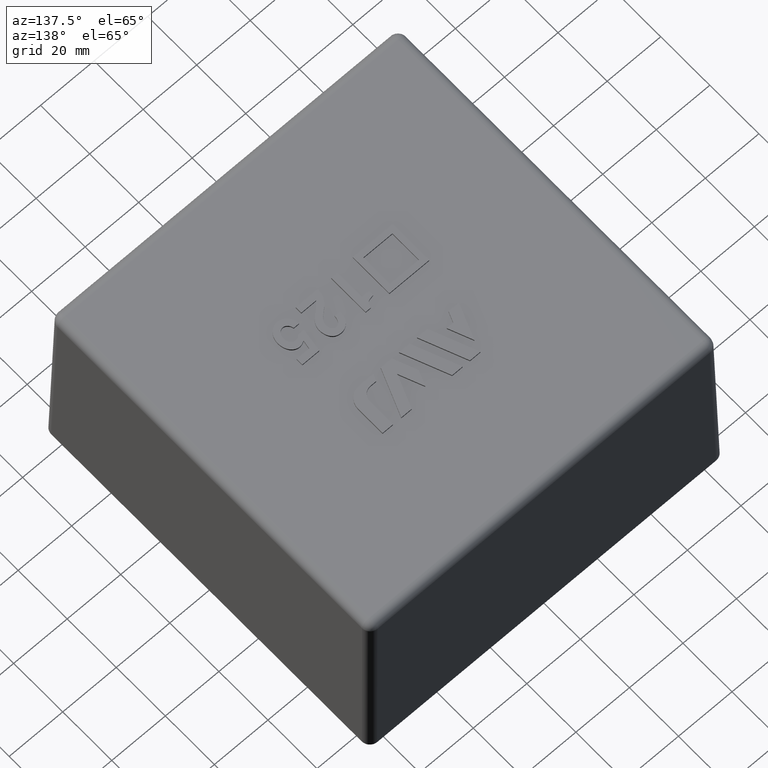
[diagram: clean part render]
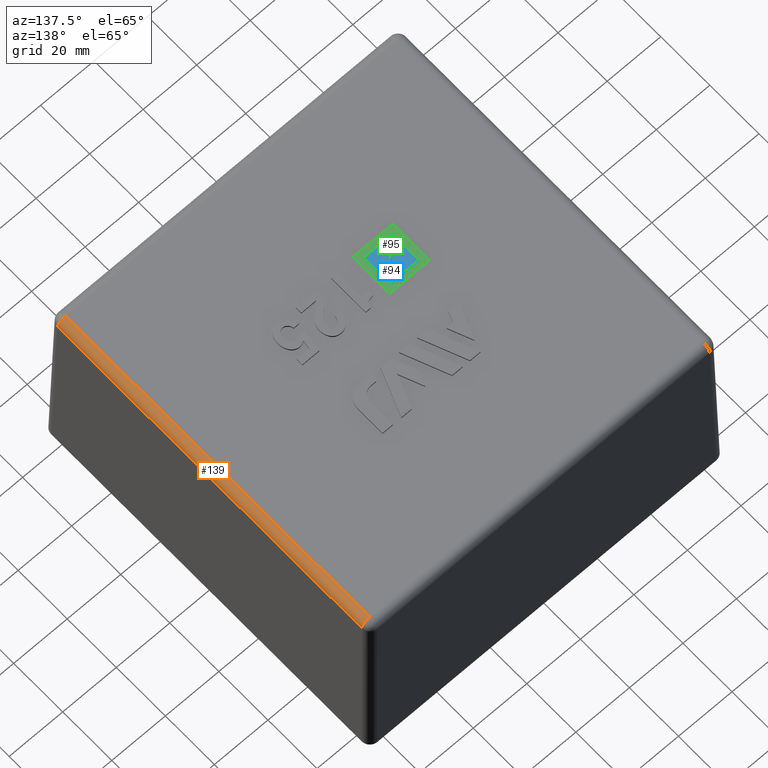
[diagram: same view with three faces highlighted in distinct colors, each labeled with its STEP entity id]
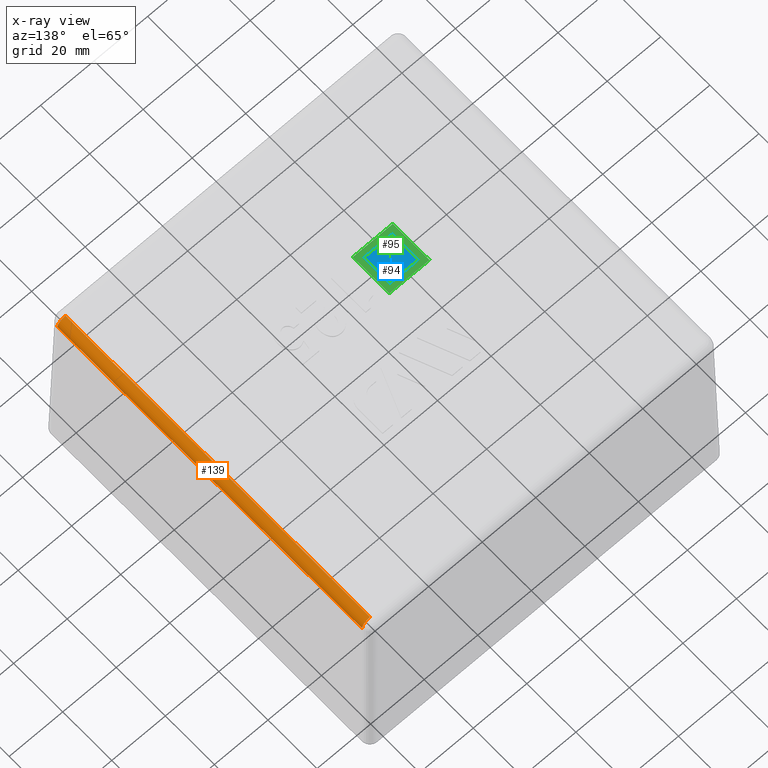
[diagram: x-ray of the same camera — body ghosted, the three highlighted faces saturated]
A machine part, auxiliary view with three faces highlighted in distinct colors.
The next image is the same camera in x-ray (body ghosted, the three faces saturated) — at least one of them is partly hidden behind the body in this view.
Their STEP definitions:

[orange] entity #139 — the highlighted cylindrical surface (edge-blend (fillet) strip) has radius 3 mm, axis along (0, -1, 0).
#139 = ADVANCED_FACE( '', ( #306 ), #307, .T. );
#306 = FACE_OUTER_BOUND( '', #505, .T. );
#307 = CYLINDRICAL_SURFACE( '', #506, 3.00000000000000 );
#505 = EDGE_LOOP( '', ( #1109, #1110, #1111, #1112 ) );
#506 = AXIS2_PLACEMENT_3D( '', #1113, #1114, #1115 );
#1109 = ORIENTED_EDGE( '', *, *, #1515, .T. );
#1110 = ORIENTED_EDGE( '', *, *, #1516, .F. );
#1111 = ORIENTED_EDGE( '', *, *, #1510, .F. );
#1112 = ORIENTED_EDGE( '', *, *, #1377, .F. );
#1113 = CARTESIAN_POINT( '', ( 62.0776884708930, -66.3000000000000, 70.0000000000000 ) );
#1114 = DIRECTION( '', ( 0.000000000000000, -1.00000000000000, 0.000000000000000 ) );
#1115 = DIRECTION( '', ( 0.000000000000000, 0.000000000000000, 1.00000000000000 ) );
#1377 = EDGE_CURVE( '', #1640, #1642, #1643, .F. );
#1510 = EDGE_CURVE( '', #1642, #1855, #1856, .T. );
#1515 = EDGE_CURVE( '', #1640, #1863, #1864, .T. );
#1516 = EDGE_CURVE( '', #1855, #1863, #1865, .F. );
#1640 = VERTEX_POINT( '', #2077 );
#1642 = VERTEX_POINT( '', #2080 );
#1643 = LINE( '', #2081, #2082 );
#1855 = VERTEX_POINT( '', #2523 );
#1856 = CIRCLE( '', #2524, 3.00000000000000 );
#1863 = VERTEX_POINT( '', #2532 );
#1864 = CIRCLE( '', #2533, 3.00000000000000 );
#1865 = LINE( '', #2534, #2535 );
#2077 = CARTESIAN_POINT( '', ( 62.0776884708930, -62.0776884708930, 73.0000000000000 ) );
#2080 = CARTESIAN_POINT( '', ( 62.0776884708930, 62.0776884708930, 73.0000000000000 ) );
#2081 = CARTESIAN_POINT( '', ( 62.0776884708930, 62.0262371747709, 73.0000000000000 ) );
#2082 = VECTOR( '', #2689, 1000.00000000000 );
#2523 = CARTESIAN_POINT( '', ( 65.0772315563622, 62.0776884708930, 70.0523572193119 ) );
#2524 = AXIS2_PLACEMENT_3D( '', #2781, #2782, #2783 );
#2532 = CARTESIAN_POINT( '', ( 65.0772315563622, -62.0776884708930, 70.0523572193118 ) );
#2533 = AXIS2_PLACEMENT_3D( '', #2794, #2795, #2796 );
#2534 = CARTESIAN_POINT( '', ( 65.0772315563622, -62.0262371747709, 70.0523572193118 ) );
#2535 = VECTOR( '', #2797, 1000.00000000000 );
#2689 = DIRECTION( '', ( 0.000000000000000, -1.00000000000000, 0.000000000000000 ) );
#2781 = CARTESIAN_POINT( '', ( 62.0776884708930, 62.0776884708930, 70.0000000000000 ) );
#2782 = DIRECTION( '', ( 0.000000000000000, 1.00000000000000, 0.000000000000000 ) );
#2783 = DIRECTION( '', ( 0.000000000000000, 0.000000000000000, 1.00000000000000 ) );
#2794 = CARTESIAN_POINT( '', ( 62.0776884708930, -62.0776884708930, 70.0000000000000 ) );
#2795 = DIRECTION( '', ( 0.000000000000000, 1.00000000000000, 0.000000000000000 ) );
#2796 = DIRECTION( '', ( 0.000000000000000, 0.000000000000000, 1.00000000000000 ) );
#2797 = DIRECTION( '', ( 0.000000000000000, 1.00000000000000, 0.000000000000000 ) );

[blue] entity #94 — the highlighted planar face has unit normal (0, 0, 1).
#94 = ADVANCED_FACE( '', ( #215 ), #216, .T. );
#215 = FACE_OUTER_BOUND( '', #414, .T. );
#216 = PLANE( '', #415 );
#414 = EDGE_LOOP( '', ( #783, #784, #785, #786 ) );
#415 = AXIS2_PLACEMENT_3D( '', #787, #788, #789 );
#783 = ORIENTED_EDGE( '', *, *, #1434, .T. );
#784 = ORIENTED_EDGE( '', *, *, #1435, .T. );
#785 = ORIENTED_EDGE( '', *, *, #1436, .T. );
#786 = ORIENTED_EDGE( '', *, *, #1437, .T. );
#787 = CARTESIAN_POINT( '', ( -66.3000000000000, -66.3000000000000, 73.0000000000000 ) );
#788 = DIRECTION( '', ( 0.000000000000000, 0.000000000000000, 1.00000000000000 ) );
#789 = DIRECTION( '', ( 0.000000000000000, -1.00000000000000, 0.000000000000000 ) );
#1434 = EDGE_CURVE( '', #1739, #1740, #1741, .T. );
#1435 = EDGE_CURVE( '', #1740, #1742, #1743, .T. );
#1436 = EDGE_CURVE( '', #1742, #1744, #1745, .T. );
#1437 = EDGE_CURVE( '', #1744, #1739, #1746, .T. );
#1739 = VERTEX_POINT( '', #2321 );
#1740 = VERTEX_POINT( '', #2322 );
#1741 = B_SPLINE_CURVE_WITH_KNOTS( '', 2, ( #2323, #2324, #2325 ), .UNSPECIFIED., .F., .F., ( 3, 3 ), ( 3.00000000000000, 4.00000000000000 ), .UNSPECIFIED. );
#1742 = VERTEX_POINT( '', #2326 );
#1743 = B_SPLINE_CURVE_WITH_KNOTS( '', 2, ( #2327, #2328, #2329 ), .UNSPECIFIED., .F., .F., ( 3, 3 ), ( 0.000000000000000, 1.00000000000000 ), .UNSPECIFIED. );
#1744 = VERTEX_POINT( '', #2330 );
#1745 = B_SPLINE_CURVE_WITH_KNOTS( '', 2, ( #2331, #2332, #2333 ), .UNSPECIFIED., .F., .F., ( 3, 3 ), ( 1.00000000000000, 2.00000000000000 ), .UNSPECIFIED. );
#1746 = B_SPLINE_CURVE_WITH_KNOTS( '', 2, ( #2334, #2335, #2336 ), .UNSPECIFIED., .F., .F., ( 3, 3 ), ( 2.00000000000000, 3.00000000000000 ), .UNSPECIFIED. );
#2321 = CARTESIAN_POINT( '', ( -21.0233982954545, -8.68355454545456, 73.0000000000000 ) );
#2322 = CARTESIAN_POINT( '', ( -21.0233982954545, -19.5244636363637, 73.0000000000000 ) );
#2323 = CARTESIAN_POINT( '', ( -21.0233982954545, -8.68355454545456, 73.0000000000000 ) );
#2324 = CARTESIAN_POINT( '', ( -21.0233982954545, -14.1040090909091, 73.0000000000000 ) );
#2325 = CARTESIAN_POINT( '', ( -21.0233982954545, -19.5244636363637, 73.0000000000000 ) );
#2326 = CARTESIAN_POINT( '', ( -10.1824892045455, -19.5244636363637, 73.0000000000000 ) );
#2327 = CARTESIAN_POINT( '', ( -21.0233982954545, -19.5244636363637, 73.0000000000000 ) );
#2328 = CARTESIAN_POINT( '', ( -15.6029437500000, -19.5244636363637, 73.0000000000000 ) );
#2329 = CARTESIAN_POINT( '', ( -10.1824892045455, -19.5244636363637, 73.0000000000000 ) );
#2330 = CARTESIAN_POINT( '', ( -10.1824892045455, -8.68355454545456, 73.0000000000000 ) );
#2331 = CARTESIAN_POINT( '', ( -10.1824892045455, -19.5244636363637, 73.0000000000000 ) );
#2332 = CARTESIAN_POINT( '', ( -10.1824892045455, -14.1040090909091, 73.0000000000000 ) );
#2333 = CARTESIAN_POINT( '', ( -10.1824892045455, -8.68355454545456, 73.0000000000000 ) );
#2334 = CARTESIAN_POINT( '', ( -10.1824892045455, -8.68355454545456, 73.0000000000000 ) );
#2335 = CARTESIAN_POINT( '', ( -15.6029437500000, -8.68355454545456, 73.0000000000000 ) );
#2336 = CARTESIAN_POINT( '', ( -21.0233982954545, -8.68355454545456, 73.0000000000000 ) );

[green] entity #95 — the highlighted planar face has unit normal (0, 0, 1).
#95 = ADVANCED_FACE( '', ( #217, #218 ), #219, .T. );
#217 = FACE_OUTER_BOUND( '', #416, .T. );
#218 = FACE_BOUND( '', #417, .T. );
#219 = PLANE( '', #418 );
#416 = EDGE_LOOP( '', ( #790, #791, #792, #793 ) );
#417 = EDGE_LOOP( '', ( #794, #795, #796, #797 ) );
#418 = AXIS2_PLACEMENT_3D( '', #798, #799, #800 );
#790 = ORIENTED_EDGE( '', *, *, #1438, .F. );
#791 = ORIENTED_EDGE( '', *, *, #1439, .F. );
#792 = ORIENTED_EDGE( '', *, *, #1440, .F. );
#793 = ORIENTED_EDGE( '', *, *, #1441, .F. );
#794 = ORIENTED_EDGE( '', *, *, #1442, .F. );
#795 = ORIENTED_EDGE( '', *, *, #1443, .F. );
#796 = ORIENTED_EDGE( '', *, *, #1444, .F. );
#797 = ORIENTED_EDGE( '', *, *, #1445, .F. );
#798 = CARTESIAN_POINT( '', ( -23.0688528409091, -14.1381000000000, 73.5000000000000 ) );
#799 = DIRECTION( '', ( 0.000000000000000, 0.000000000000000, 1.00000000000000 ) );
#800 = DIRECTION( '', ( 0.000000000000000, -1.00000000000000, 0.000000000000000 ) );
#1438 = EDGE_CURVE( '', #1747, #1748, #1749, .T. );
#1439 = EDGE_CURVE( '', #1750, #1747, #1751, .T. );
#1440 = EDGE_CURVE( '', #1752, #1750, #1753, .T. );
#1441 = EDGE_CURVE( '', #1748, #1752, #1754, .T. );
#1442 = EDGE_CURVE( '', #1755, #1756, #1757, .T. );
#1443 = EDGE_CURVE( '', #1758, #1755, #1759, .T. );
#1444 = EDGE_CURVE( '', #1760, #1758, #1761, .T. );
#1445 = EDGE_CURVE( '', #1756, #1760, #1762, .T. );
#1747 = VERTEX_POINT( '', #2337 );
#1748 = VERTEX_POINT( '', #2338 );
#1749 = B_SPLINE_CURVE_WITH_KNOTS( '', 2, ( #2339, #2340, #2341 ), .UNSPECIFIED., .F., .F., ( 3, 3 ), ( 0.000000000000000, 1.00000000000000 ), .UNSPECIFIED. );
#1750 = VERTEX_POINT( '', #2342 );
#1751 = B_SPLINE_CURVE_WITH_KNOTS( '', 2, ( #2343, #2344, #2345 ), .UNSPECIFIED., .F., .F., ( 3, 3 ), ( 3.00000000000000, 4.00000000000000 ), .UNSPECIFIED. );
#1752 = VERTEX_POINT( '', #2346 );
#1753 = B_SPLINE_CURVE_WITH_KNOTS( '', 2, ( #2347, #2348, #2349 ), .UNSPECIFIED., .F., .F., ( 3, 3 ), ( 2.00000000000000, 3.00000000000000 ), .UNSPECIFIED. );
#1754 = B_SPLINE_CURVE_WITH_KNOTS( '', 2, ( #2350, #2351, #2352 ), .UNSPECIFIED., .F., .F., ( 3, 3 ), ( 1.00000000000000, 2.00000000000000 ), .UNSPECIFIED. );
#1755 = VERTEX_POINT( '', #2353 );
#1756 = VERTEX_POINT( '', #2354 );
#1757 = B_SPLINE_CURVE_WITH_KNOTS( '', 2, ( #2355, #2356, #2357 ), .UNSPECIFIED., .F., .F., ( 3, 3 ), ( 0.000000000000000, 1.00000000000000 ), .UNSPECIFIED. );
#1758 = VERTEX_POINT( '', #2358 );
#1759 = B_SPLINE_CURVE_WITH_KNOTS( '', 2, ( #2359, #2360, #2361 ), .UNSPECIFIED., .F., .F., ( 3, 3 ), ( 3.00000000000000, 4.00000000000000 ), .UNSPECIFIED. );
#1760 = VERTEX_POINT( '', #2362 );
#1761 = B_SPLINE_CURVE_WITH_KNOTS( '', 2, ( #2363, #2364, #2365 ), .UNSPECIFIED., .F., .F., ( 3, 3 ), ( 2.00000000000000, 3.00000000000000 ), .UNSPECIFIED. );
#1762 = B_SPLINE_CURVE_WITH_KNOTS( '', 2, ( #2366, #2367, #2368 ), .UNSPECIFIED., .F., .F., ( 3, 3 ), ( 1.00000000000000, 2.00000000000000 ), .UNSPECIFIED. );
#2337 = CARTESIAN_POINT( '', ( -23.0688528409091, -21.5699181818182, 73.5000000000000 ) );
#2338 = CARTESIAN_POINT( '', ( -23.0688528409091, -6.70628181818183, 73.5000000000000 ) );
#2339 = CARTESIAN_POINT( '', ( -23.0688528409091, -21.5699181818182, 73.5000000000000 ) );
#2340 = CARTESIAN_POINT( '', ( -23.0688528409091, -14.1381000000000, 73.5000000000000 ) );
#2341 = CARTESIAN_POINT( '', ( -23.0688528409091, -6.70628181818183, 73.5000000000000 ) );
#2342 = CARTESIAN_POINT( '', ( -8.13703465909091, -21.5699181818182, 73.5000000000000 ) );
#2343 = CARTESIAN_POINT( '', ( -8.13703465909091, -21.5699181818182, 73.5000000000000 ) );
#2344 = CARTESIAN_POINT( '', ( -15.6029437500000, -21.5699181818182, 73.5000000000000 ) );
#2345 = CARTESIAN_POINT( '', ( -23.0688528409091, -21.5699181818182, 73.5000000000000 ) );
#2346 = CARTESIAN_POINT( '', ( -8.13703465909091, -6.70628181818183, 73.5000000000000 ) );
#2347 = CARTESIAN_POINT( '', ( -8.13703465909091, -6.70628181818183, 73.5000000000000 ) );
#2348 = CARTESIAN_POINT( '', ( -8.13703465909091, -14.1381000000000, 73.5000000000000 ) );
#2349 = CARTESIAN_POINT( '', ( -8.13703465909091, -21.5699181818182, 73.5000000000000 ) );
#2350 = CARTESIAN_POINT( '', ( -23.0688528409091, -6.70628181818183, 73.5000000000000 ) );
#2351 = CARTESIAN_POINT( '', ( -15.6029437500000, -6.70628181818183, 73.5000000000000 ) );
#2352 = CARTESIAN_POINT( '', ( -8.13703465909091, -6.70628181818183, 73.5000000000000 ) );
#2353 = CARTESIAN_POINT( '', ( -21.0233982954545, -19.5244636363637, 73.5000000000000 ) );
#2354 = CARTESIAN_POINT( '', ( -10.1824892045455, -19.5244636363637, 73.5000000000000 ) );
#2355 = CARTESIAN_POINT( '', ( -21.0233982954545, -19.5244636363637, 73.5000000000000 ) );
#2356 = CARTESIAN_POINT( '', ( -15.6029437500000, -19.5244636363637, 73.5000000000000 ) );
#2357 = CARTESIAN_POINT( '', ( -10.1824892045455, -19.5244636363637, 73.5000000000000 ) );
#2358 = CARTESIAN_POINT( '', ( -21.0233982954545, -8.68355454545456, 73.5000000000000 ) );
#2359 = CARTESIAN_POINT( '', ( -21.0233982954545, -8.68355454545456, 73.5000000000000 ) );
#2360 = CARTESIAN_POINT( '', ( -21.0233982954545, -14.1040090909091, 73.5000000000000 ) );
#2361 = CARTESIAN_POINT( '', ( -21.0233982954545, -19.5244636363637, 73.5000000000000 ) );
#2362 = CARTESIAN_POINT( '', ( -10.1824892045455, -8.68355454545456, 73.5000000000000 ) );
#2363 = CARTESIAN_POINT( '', ( -10.1824892045455, -8.68355454545456, 73.5000000000000 ) );
#2364 = CARTESIAN_POINT( '', ( -15.6029437500000, -8.68355454545456, 73.5000000000000 ) );
#2365 = CARTESIAN_POINT( '', ( -21.0233982954545, -8.68355454545456, 73.5000000000000 ) );
#2366 = CARTESIAN_POINT( '', ( -10.1824892045455, -19.5244636363637, 73.5000000000000 ) );
#2367 = CARTESIAN_POINT( '', ( -10.1824892045455, -14.1040090909091, 73.5000000000000 ) );
#2368 = CARTESIAN_POINT( '', ( -10.1824892045455, -8.68355454545456, 73.5000000000000 ) );